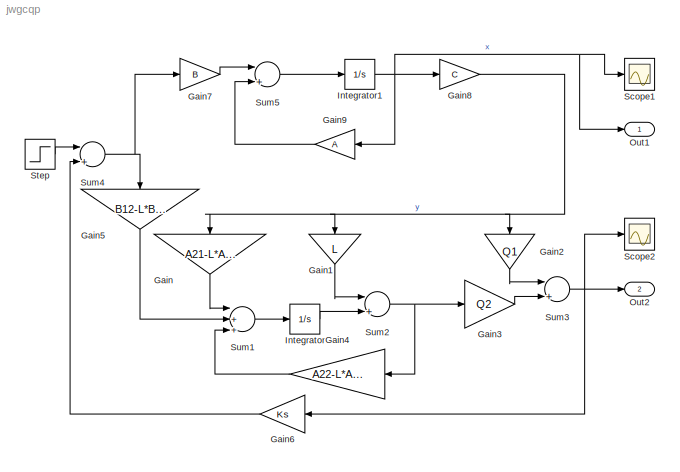
MODEL jwgcqp
KIND model
CONFIG InitFcn = jwgcp()
BLOCK [Gain] Gain
  Gain = A21-L*A11
  Multiplication = Matrix(K*u)
BLOCK [Gain] Gain1
  Gain = L
  Multiplication = Matrix(K*u)
BLOCK [Gain] Gain2
  Gain = Q1
  Multiplication = Matrix(K*u)
BLOCK [Gain] Gain3
  Gain = Q2
  Multiplication = Matrix(K*u)
BLOCK [Gain] Gain4
  Gain = A22-L*A12
  Multiplication = Matrix(K*u)
BLOCK [Gain] Gain5
  Gain = B12-L*B11
  Multiplication = Matrix(K*u)
BLOCK [Gain] Gain6
  Gain = Ks
  Multiplication = Matrix(K*u)
BLOCK [Gain] Gain7
  Gain = B
  Multiplication = Matrix(K*u)
BLOCK [Gain] Gain8
  Gain = C
  Multiplication = Matrix(K*u)
BLOCK [Gain] Gain9
  Gain = A
  Multiplication = Matrix(K*u)
BLOCK [Integrator] Integrator
  Ports = [1, 1]
BLOCK [Integrator] Integrator1
  Ports = [1, 1]
BLOCK [Outport] Out1
  BusOutputAsStruct = off
  IconDisplay = Port number
BLOCK [Outport] Out2
  BusOutputAsStruct = off
  IconDisplay = Port number
  Port = 2
BLOCK [Scope] Scope1
  DataFormat = StructureWithTime
  NumInputPorts = 1
  Ports = [1]
  SaveName = ScopeData4
  TimeRange = 10
BLOCK [Scope] Scope2
  DataFormat = StructureWithTime
  NumInputPorts = 1
  Ports = [1]
BLOCK [Step] Step
  After = 0.2
  SampleTime = 0
  Time = 0
  VectorParams1D = off
BLOCK [Sum] Sum1
  InputSameDT = off
  Inputs = |+++
  OutDataTypeMode = Inherit via internal rule
  Ports = [3, 1]
BLOCK [Sum] Sum2
  InputSameDT = off
  Inputs = |++
  OutDataTypeMode = Inherit via internal rule
  Ports = [2, 1]
BLOCK [Sum] Sum3
  InputSameDT = off
  Inputs = |++
  OutDataTypeMode = Inherit via internal rule
  Ports = [2, 1]
BLOCK [Sum] Sum4
  InputSameDT = off
  Inputs = |+-
  OutDataTypeMode = Inherit via internal rule
  Ports = [2, 1]
BLOCK [Sum] Sum5
  InputSameDT = off
  Inputs = |++
  OutDataTypeMode = Inherit via internal rule
  Ports = [2, 1]
LINE Gain1:1 -> Sum2:1
LINE Gain2:1 -> Sum3:1
LINE Gain3:1 -> Sum3:2
LINE Gain4:1 -> Sum1:3
LINE Gain5:1 -> Sum1:2
LINE Gain6:1 -> Sum4:2
LINE Gain7:1 -> Sum5:1
NET Gain8:1 -> Gain1:1, Gain2:1, Gain:1
LINE Gain9:1 -> Sum5:2
LINE Gain:1 -> Sum1:1
NET Integrator1:1 -> Gain8:1, Gain9:1, Out1:1, Scope1:1
LINE Integrator:1 -> Sum2:2
LINE Step:1 -> Sum4:1
LINE Sum1:1 -> Integrator:1
NET Sum2:1 -> Gain3:1, Gain4:1
NET Sum3:1 -> Gain6:1, Out2:1, Scope2:1
NET Sum4:1 -> Gain5:1, Gain7:1
LINE Sum5:1 -> Integrator1:1
note: NET lines group one-source signal fan-out (src -> all destinations, sorted); 1:1 wires keep LINE
